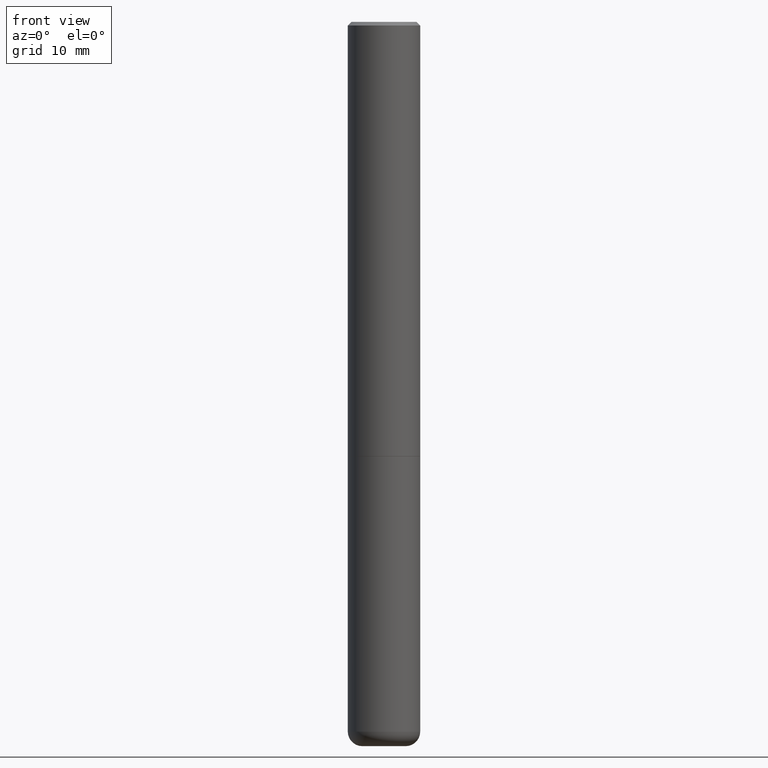
[diagram: clean part render]
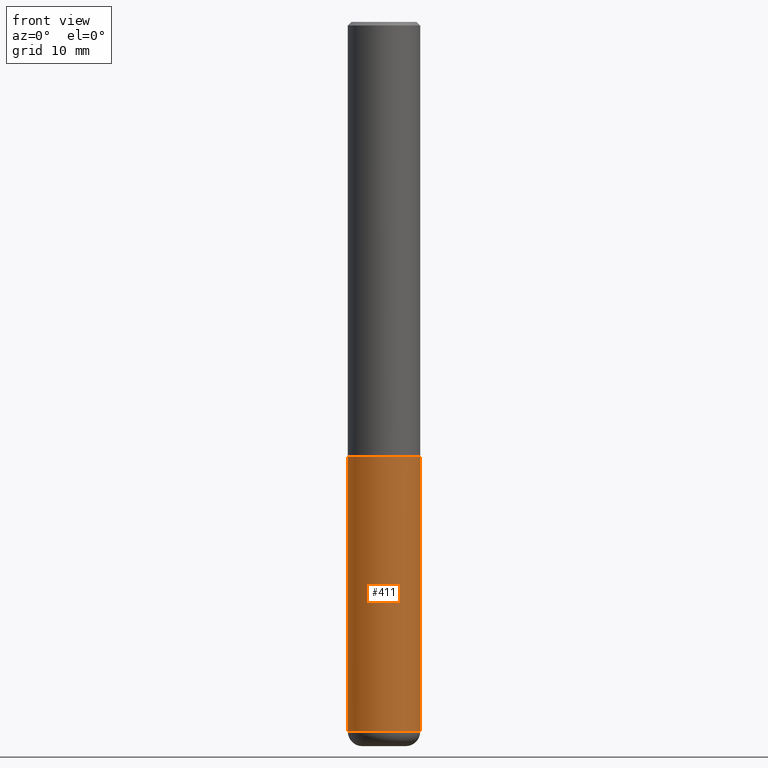
[diagram: same view with one face highlighted and labeled with its STEP entity id]
A machine part, front view. The second image highlights one B-rep face of the part: STEP entity #411.
In plain terms, the highlighted cylindrical surface (edge-blend (fillet) strip) has radius 5 mm, axis along (-0, 0, 1).
Its self-contained STEP definition (entity closure, byte-faithful):
#3 = CARTESIAN_POINT ( 'NONE',  ( 0.000000000000000000, 0.000000000000000000, 0.000000000000000000 ) ) ;
#6 = CARTESIAN_POINT ( 'NONE',  ( 0.1968500000000000250, -1.374596203102541608E-15, 9.598753983154300858E-30 ) ) ;
#24 = ORIENTED_EDGE ( 'NONE', *, *, #90, .F. ) ;
#27 = AXIS2_PLACEMENT_3D ( 'NONE', #3, #36, #158 ) ;
#28 = LINE ( 'NONE', #152, #395 ) ;
#29 = CARTESIAN_POINT ( 'NONE',  ( -0.1968500000000000250, -9.460676458793135485E-15, -2.362200000000000077 ) ) ;
#31 = CYLINDRICAL_SURFACE ( 'NONE', #27, 0.1968500000000000250 ) ;
#36 = DIRECTION ( 'NONE',  ( -2.445468806185136597E-29, 3.491481338843145583E-15, 1.000000000000000000 ) ) ;
#46 = VERTEX_POINT ( 'NONE', #246 ) ;
#71 = DIRECTION ( 'NONE',  ( 1.000000000000000000, -6.982962677686267499E-15, 0.000000000000000000 ) ) ;
#90 = EDGE_CURVE ( 'NONE', #99, #162, #28, .T. ) ;
#99 = VERTEX_POINT ( 'NONE', #116 ) ;
#101 = LINE ( 'NONE', #6, #126 ) ;
#105 = DIRECTION ( 'NONE',  ( -2.445468806185136597E-29, 3.491481338843145583E-15, 1.000000000000000000 ) ) ;
#115 = DIRECTION ( 'NONE',  ( -2.445468806185136877E-29, 3.491481338843145188E-15, 1.000000000000000000 ) ) ;
#116 = CARTESIAN_POINT ( 'NONE',  ( -0.1968499999999998307, -1.207247907431475308E-14, -3.858300000000000285 ) ) ;
#126 = VECTOR ( 'NONE', #115, 39.37007874015748143 ) ;
#138 = DIRECTION ( 'NONE',  ( 1.000000000000000000, -6.982962677686267499E-15, 0.000000000000000000 ) ) ;
#150 = ORIENTED_EDGE ( 'NONE', *, *, #172, .T. ) ;
#152 = CARTESIAN_POINT ( 'NONE',  ( -0.1968500000000000250, 1.398703375343757393E-15, -9.682923725166783677E-30 ) ) ;
#158 = DIRECTION ( 'NONE',  ( 1.000000000000000000, -6.982962677686265922E-15, 4.876176775795935793E-29 ) ) ;
#162 = VERTEX_POINT ( 'NONE', #29 ) ;
#166 = CARTESIAN_POINT ( 'NONE',  ( 9.435352294904112142E-29, -1.347118244965850850E-14, -3.858300000000000285 ) ) ;
#172 = EDGE_CURVE ( 'NONE', #99, #341, #272, .T. ) ;
#193 = DIRECTION ( 'NONE',  ( -2.445468806185136597E-29, 3.491481338843145583E-15, 1.000000000000000000 ) ) ;
#197 = AXIS2_PLACEMENT_3D ( 'NONE', #368, #105, #138 ) ;
#223 = ORIENTED_EDGE ( 'NONE', *, *, #261, .T. ) ;
#246 = CARTESIAN_POINT ( 'NONE',  ( 0.1968500000000000250, -9.622173421717821235E-15, -2.362200000000000077 ) ) ;
#261 = EDGE_CURVE ( 'NONE', #341, #46, #101, .T. ) ;
#272 = CIRCLE ( 'NONE', #291, 0.1968500000000000250 ) ;
#289 = EDGE_LOOP ( 'NONE', ( #24, #150, #223, #415 ) ) ;
#291 = AXIS2_PLACEMENT_3D ( 'NONE', #166, #193, #71 ) ;
#309 = FACE_OUTER_BOUND ( 'NONE', #289, .T. ) ;
#341 = VERTEX_POINT ( 'NONE', #402 ) ;
#349 = EDGE_CURVE ( 'NONE', #162, #46, #355, .T. ) ;
#355 = CIRCLE ( 'NONE', #197, 0.1968500000000000250 ) ;
#368 = CARTESIAN_POINT ( 'NONE',  ( 5.776686413970529753E-29, -8.247577218615279626E-15, -2.362200000000000077 ) ) ;
#395 = VECTOR ( 'NONE', #412, 39.37007874015748143 ) ;
#402 = CARTESIAN_POINT ( 'NONE',  ( 0.1968499999999998307, -1.484577865276104695E-14, -3.858300000000000285 ) ) ;
#411 = ADVANCED_FACE ( 'NONE', ( #309 ), #31, .T. ) ;
#412 = DIRECTION ( 'NONE',  ( -2.445468806185136877E-29, 3.491481338843145188E-15, 1.000000000000000000 ) ) ;
#415 = ORIENTED_EDGE ( 'NONE', *, *, #349, .F. ) ;